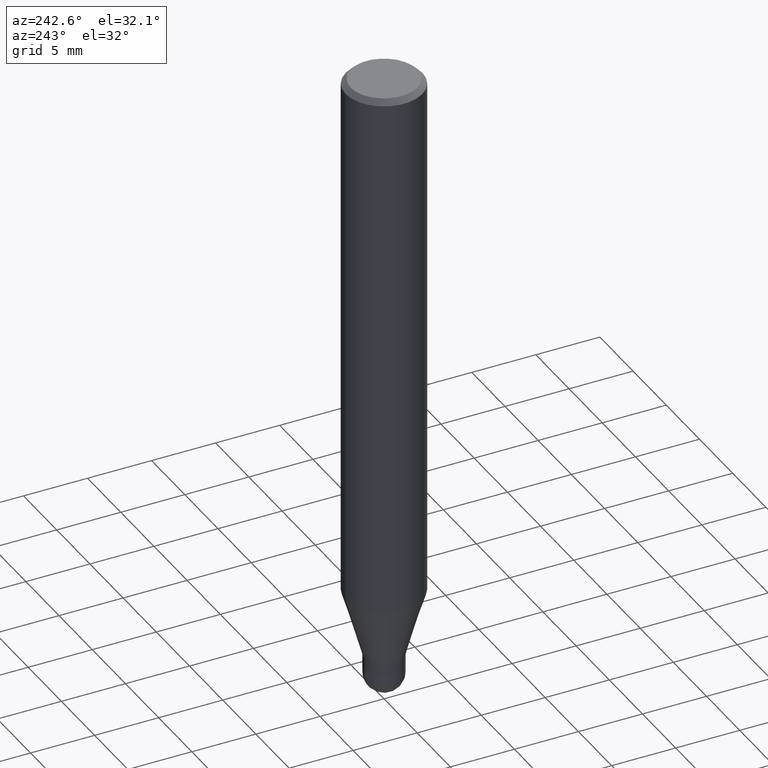
[diagram: clean part render]
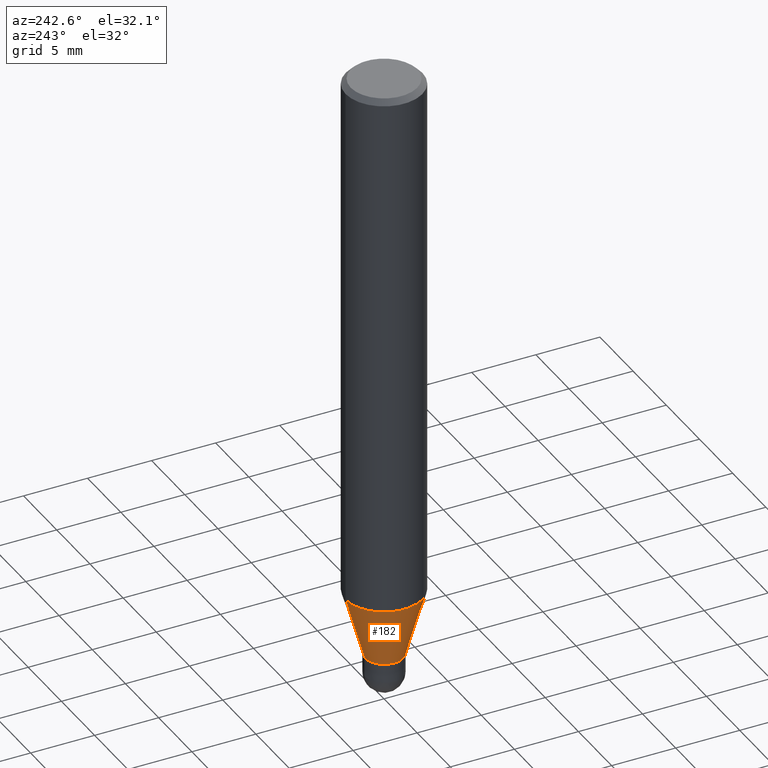
[diagram: same view with one face highlighted and labeled with its STEP entity id]
A machine part, auxiliary view. The second image highlights one B-rep face of the part: STEP entity #182.
In plain terms, the highlighted conical surface has half-angle 16 deg.
Its self-contained STEP definition (entity closure, byte-faithful):
#88=VERTEX_POINT('',#213);
#94=VERTEX_POINT('',#219);
#98=VERTEX_POINT('',#223);
#108=EDGE_CURVE('',#98,#88,#234,.T.);
#126=EDGE_CURVE('',#94,#148,#255,.T.);
#138=EDGE_CURVE('',#94,#88,#267,.T.);
#148=VERTEX_POINT('',#280);
#174=EDGE_CURVE('',#148,#98,#310,.T.);
#182=ADVANCED_FACE('',(#319),#320,.T.);
#213=CARTESIAN_POINT('',(0.0,1.49995,-47.0));
#219=CARTESIAN_POINT('',(1.83684830041587E-016,-1.49995,-47.0));
#223=CARTESIAN_POINT('',(0.0,2.99995,-41.769));
#234=LINE('',#375,#376);
#255=LINE('',#398,#399);
#267=CIRCLE('',#414,1.49995);
#280=CARTESIAN_POINT('',(3.67375783114944E-016,-2.99995,-41.769));
#310=CIRCLE('',#466,2.99995);
#319=FACE_OUTER_BOUND('',#477,.T.);
#320=CONICAL_SURFACE('',#478,2.24995,0.279258842899557);
#375=CARTESIAN_POINT('',(-2.75530306578266E-016,2.24995,-44.3845));
#376=VECTOR('',#513,1.0);
#398=CARTESIAN_POINT('',(2.75530306578266E-016,-2.24995,-44.3845));
#399=VECTOR('',#540,1.0);
#414=AXIS2_PLACEMENT_3D('',#547,#548,#549);
#466=AXIS2_PLACEMENT_3D('',#607,#608,#609);
#477=EDGE_LOOP('',(#625,#626,#627,#628));
#478=AXIS2_PLACEMENT_3D('',#629,#630,#631);
#513=DIRECTION('',(3.37554511665357E-017,-0.275643279664314,-0.961259997282682));
#540=DIRECTION('',(3.37554511665357E-017,-0.275643279664314,0.961259997282682));
#547=CARTESIAN_POINT('',(0.0,0.0,-47.0));
#548=DIRECTION('',(0.0,0.0,-1.0));
#549=DIRECTION('',(0.0,1.0,0.0));
#607=CARTESIAN_POINT('',(0.0,0.0,-41.769));
#608=DIRECTION('',(0.0,0.0,-1.0));
#609=DIRECTION('',(0.0,1.0,0.0));
#625=ORIENTED_EDGE('',*,*,#108,.T.);
#626=ORIENTED_EDGE('',*,*,#138,.F.);
#627=ORIENTED_EDGE('',*,*,#126,.T.);
#628=ORIENTED_EDGE('',*,*,#174,.T.);
#629=CARTESIAN_POINT('',(0.0,0.0,-44.3845));
#630=DIRECTION('',(-0.0,-0.0,1.0));
#631=DIRECTION('',(0.0,1.0,0.0));